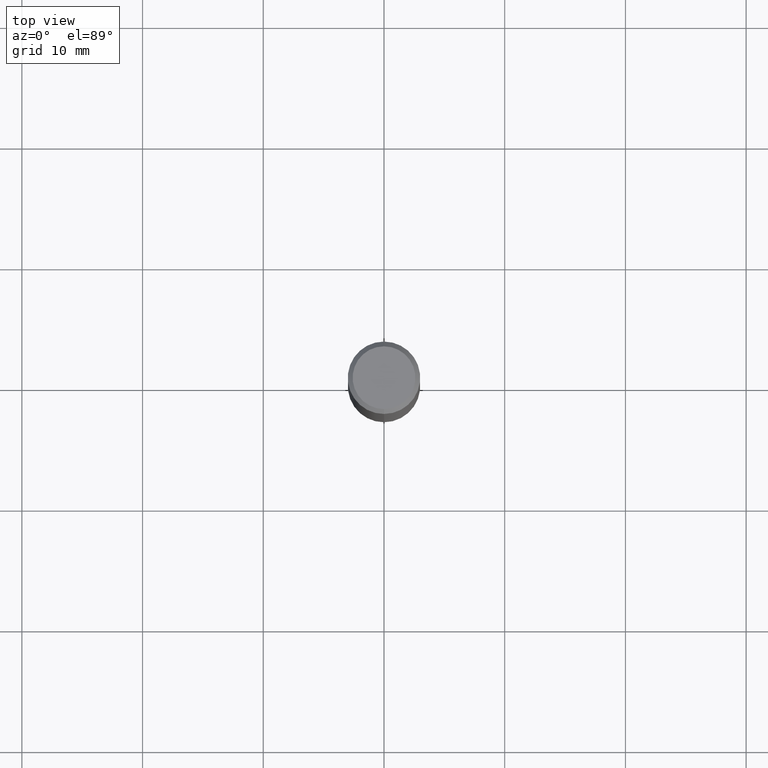
[diagram: clean part render]
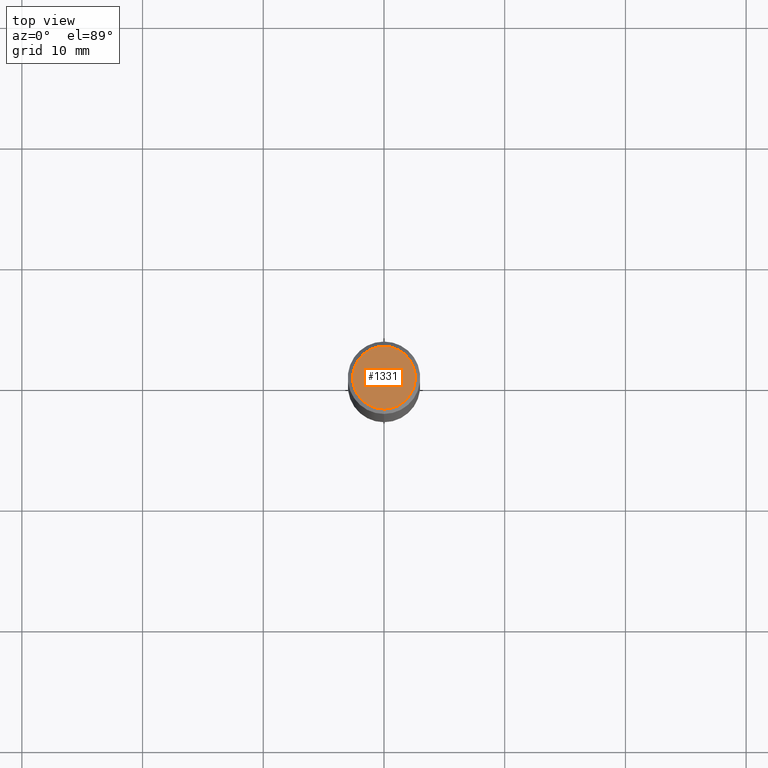
[diagram: same view with one face highlighted and labeled with its STEP entity id]
A machine part, top view. The second image highlights one B-rep face of the part: STEP entity #1331.
In plain terms, the highlighted planar face has unit normal (-0, 0, 1).
Its self-contained STEP definition (entity closure, byte-faithful):
#603=VERTEX_POINT('',#1592);
#879=VERTEX_POINT('',#1893);
#1077=EDGE_CURVE('',#603,#879,#2115,.T.);
#1145=EDGE_CURVE('',#879,#603,#2187,.T.);
#1331=ADVANCED_FACE('',(#2390),#2391,.T.);
#1592=CARTESIAN_POINT('',(3.18397651993818E-016,-2.6,0.0));
#1893=CARTESIAN_POINT('',(0.0,2.6,0.0));
#2115=CIRCLE('',#5931,2.6);
#2187=CIRCLE('',#6108,2.6);
#2390=FACE_OUTER_BOUND('',#7079,.T.);
#2391=PLANE('',#7080);
#5931=AXIS2_PLACEMENT_3D('',#8595,#8596,#8597);
#6108=AXIS2_PLACEMENT_3D('',#8646,#8647,#8648);
#7079=EDGE_LOOP('',(#8863,#8864));
#7080=AXIS2_PLACEMENT_3D('',#8865,#8866,#8867);
#8595=CARTESIAN_POINT('',(0.0,0.0,0.0));
#8596=DIRECTION('',(0.0,0.0,-1.0));
#8597=DIRECTION('',(0.0,1.0,0.0));
#8646=CARTESIAN_POINT('',(0.0,0.0,0.0));
#8647=DIRECTION('',(0.0,0.0,-1.0));
#8648=DIRECTION('',(0.0,1.0,0.0));
#8863=ORIENTED_EDGE('',*,*,#1145,.F.);
#8864=ORIENTED_EDGE('',*,*,#1077,.F.);
#8865=CARTESIAN_POINT('',(0.0,1.3,0.0));
#8866=DIRECTION('',(-0.0,0.0,1.0));
#8867=DIRECTION('',(0.0,-1.0,0.0));